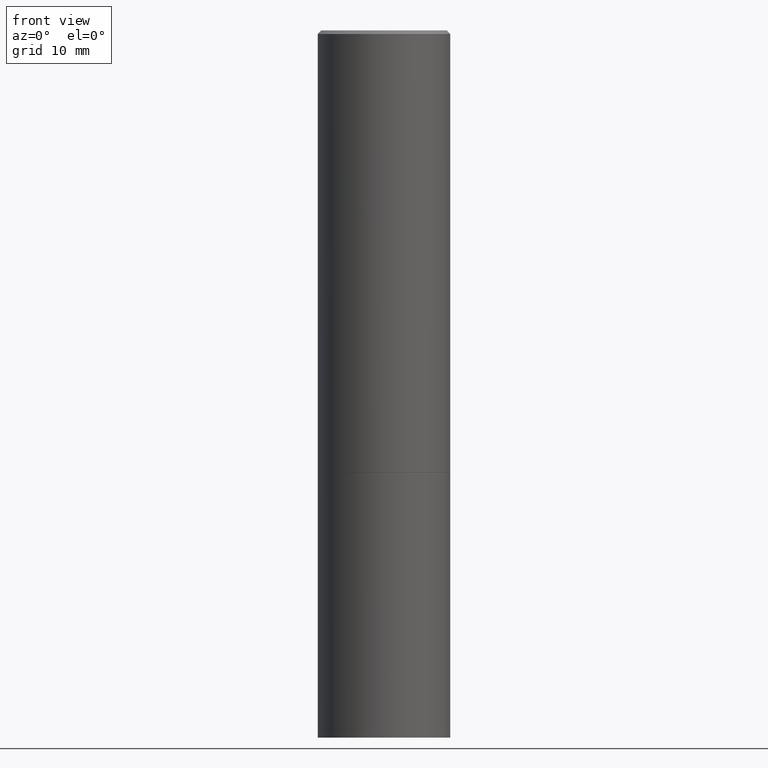
[diagram: clean part render]
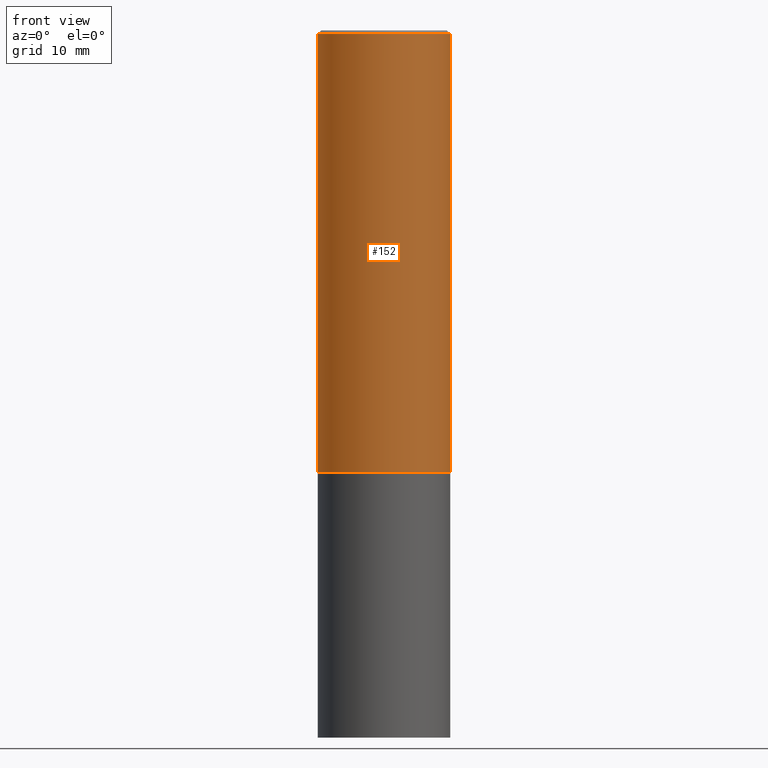
[diagram: same view with one face highlighted and labeled with its STEP entity id]
A machine part, front view. The second image highlights one B-rep face of the part: STEP entity #152.
In plain terms, the highlighted cylindrical surface (partial cylindrical patch) has radius 9.525 mm, axis along (-0, 0, 1).
Its self-contained STEP definition (entity closure, byte-faithful):
#2 = EDGE_CURVE ( 'NONE', #250, #134, #180, .T. ) ;
#4 = CARTESIAN_POINT ( 'NONE',  ( 4.890937612370297681E-31, -6.982962677686324889E-17, -0.02000000000000009756 ) ) ;
#6 = ORIENTED_EDGE ( 'NONE', *, *, #2, .T. ) ;
#7 = AXIS2_PLACEMENT_3D ( 'NONE', #169, #75, #314 ) ;
#24 = EDGE_CURVE ( 'NONE', #35, #250, #301, .T. ) ;
#35 = VERTEX_POINT ( 'NONE', #137 ) ;
#48 = CARTESIAN_POINT ( 'NONE',  ( -0.3749999999999998890, 2.664535259100374908E-15, -1.844600658845589038E-29 ) ) ;
#57 = AXIS2_PLACEMENT_3D ( 'NONE', #240, #58, #184 ) ;
#58 = DIRECTION ( 'NONE',  ( -2.445468806185136597E-29, 3.491481338843145583E-15, 1.000000000000000000 ) ) ;
#64 = CARTESIAN_POINT ( 'NONE',  ( 0.3750000000000000555, -1.134382286990137195E-14, -2.499000000000000110 ) ) ;
#75 = DIRECTION ( 'NONE',  ( -2.445468806185136597E-29, 3.491481338843145583E-15, 1.000000000000000000 ) ) ;
#79 = VECTOR ( 'NONE', #88, 39.37007874015748143 ) ;
#88 = DIRECTION ( 'NONE',  ( -2.445468806185136877E-29, 3.491481338843145188E-15, 1.000000000000000000 ) ) ;
#95 = LINE ( 'NONE', #48, #102 ) ;
#102 = VECTOR ( 'NONE', #377, 39.37007874015748143 ) ;
#116 = AXIS2_PLACEMENT_3D ( 'NONE', #4, #305, #283 ) ;
#134 = VERTEX_POINT ( 'NONE', #365 ) ;
#137 = CARTESIAN_POINT ( 'NONE',  ( -0.3750000000000000555, -1.732985487172564750E-15, -2.499000000000000110 ) ) ;
#138 = EDGE_CURVE ( 'NONE', #35, #224, #95, .T. ) ;
#152 = ADVANCED_FACE ( 'NONE', ( #387 ), #323, .T. ) ;
#169 = CARTESIAN_POINT ( 'NONE',  ( 6.111226546656657010E-29, -8.725211865769021935E-15, -2.499000000000000110 ) ) ;
#180 = LINE ( 'NONE', #298, #79 ) ;
#184 = DIRECTION ( 'NONE',  ( 1.000000000000000000, -6.982962677686266711E-15, 4.876176775795935793E-29 ) ) ;
#224 = VERTEX_POINT ( 'NONE', #345 ) ;
#240 = CARTESIAN_POINT ( 'NONE',  ( 0.000000000000000000, 0.000000000000000000, 0.000000000000000000 ) ) ;
#247 = CIRCLE ( 'NONE', #116, 0.3749999999999997780 ) ;
#250 = VERTEX_POINT ( 'NONE', #64 ) ;
#267 = ORIENTED_EDGE ( 'NONE', *, *, #369, .F. ) ;
#283 = DIRECTION ( 'NONE',  ( 1.000000000000000000, -6.982962677686265922E-15, 0.000000000000000000 ) ) ;
#298 = CARTESIAN_POINT ( 'NONE',  ( 0.3749999999999998890, -2.618611004132349228E-15, 1.828566290923475362E-29 ) ) ;
#301 = CIRCLE ( 'NONE', #7, 0.3750000000000000555 ) ;
#305 = DIRECTION ( 'NONE',  ( -2.445468806185136597E-29, 3.491481338843145583E-15, 1.000000000000000000 ) ) ;
#307 = EDGE_LOOP ( 'NONE', ( #367, #343, #6, #267 ) ) ;
#314 = DIRECTION ( 'NONE',  ( 1.000000000000000000, -6.982962677686264344E-15, 0.000000000000000000 ) ) ;
#323 = CYLINDRICAL_SURFACE ( 'NONE', #57, 0.3749999999999998890 ) ;
#343 = ORIENTED_EDGE ( 'NONE', *, *, #24, .T. ) ;
#345 = CARTESIAN_POINT ( 'NONE',  ( -0.3749999999999997780, 2.548781377355484746E-15, -0.02000000000000009756 ) ) ;
#365 = CARTESIAN_POINT ( 'NONE',  ( 0.3749999999999997780, -2.642516375941186056E-15, -0.02000000000000009756 ) ) ;
#367 = ORIENTED_EDGE ( 'NONE', *, *, #138, .F. ) ;
#369 = EDGE_CURVE ( 'NONE', #224, #134, #247, .T. ) ;
#377 = DIRECTION ( 'NONE',  ( -2.445468806185136877E-29, 3.491481338843145188E-15, 1.000000000000000000 ) ) ;
#387 = FACE_OUTER_BOUND ( 'NONE', #307, .T. ) ;